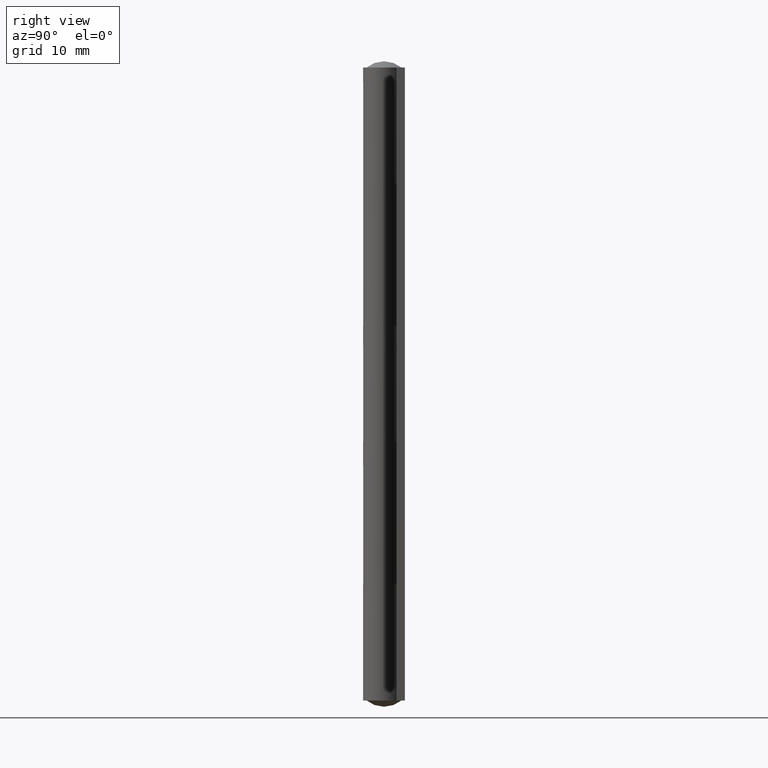
[diagram: clean part render]
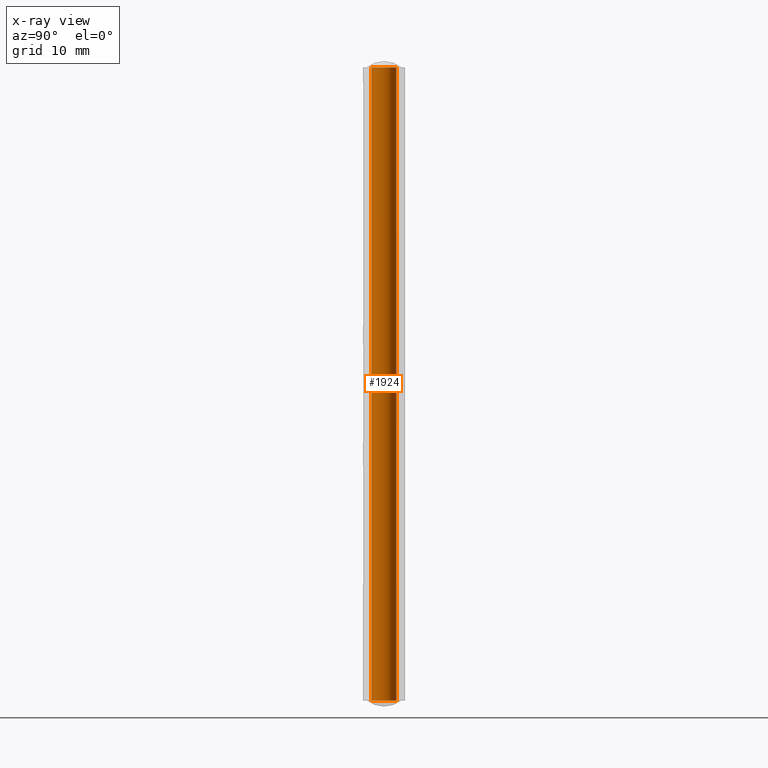
[diagram: x-ray — body ghosted, one internal face saturated and labeled with its STEP entity id]
A machine part, right view, then the same camera in x-ray: the body is ghosted and one INTERNAL B-rep face — a face not visible from any outside direction — is saturated and labeled: STEP entity #1924.
In plain terms, the highlighted face is a freeform B-spline surface patch.
Its self-contained STEP definition (entity closure, byte-faithful):
#1791=CARTESIAN_POINT('',(1.500004000000060,0.0,0.0));
#1792=VERTEX_POINT('',#1791);
#1793=CARTESIAN_POINT('',(0.091573053752788,-1.497206190156383,-9.584447E-015));
#1794=VERTEX_POINT('',#1793);
#1795=CARTESIAN_POINT('',(1.500004000000060,0.0,0.0));
#1796=CARTESIAN_POINT('',(1.500004000000060,-1.411062862940824,-6.974732E-015));
#1797=CARTESIAN_POINT('',(0.091573053752787,-1.497206190156376,-7.400529E-015));
#1805=(BOUNDED_CURVE()B_SPLINE_CURVE(2,(#1795,#1796,#1797),.UNSPECIFIED.,.F.,.U.)B_SPLINE_CURVE_WITH_KNOTS((3,3),(0.500000000000000,0.739332962212426),.UNSPECIFIED.)CURVE()GEOMETRIC_REPRESENTATION_ITEM()RATIONAL_B_SPLINE_CURVE((1.0,0.719603993317776,0.976072041609887))REPRESENTATION_ITEM(''));
#1806=EDGE_CURVE('',#1792,#1794,#1805,.T.);
#1825=CARTESIAN_POINT('',(-0.091573053752788,1.497206190156383,-9.591361E-015));
#1826=VERTEX_POINT('',#1825);
#1840=CARTESIAN_POINT('',(-0.091573053752788,1.497206190156383,-9.591361E-015));
#1841=CARTESIAN_POINT('',(-0.045829267287468,1.500004000000060,-7.414359E-015));
#1842=CARTESIAN_POINT('',(0.0,1.500004000000060,-7.414359E-015));
#1843=CARTESIAN_POINT('',(1.500004000000059,1.500004000000059,-7.414359E-015));
#1844=CARTESIAN_POINT('',(1.500004000000060,0.0,-7.414359E-015));
#1852=(BOUNDED_CURVE()B_SPLINE_CURVE(2,(#1840,#1841,#1842,#1843,#1844),.UNSPECIFIED.,.F.,.U.)B_SPLINE_CURVE_WITH_KNOTS((3,2,3),(0.239332962212426,0.250000000000000,0.500000000000000),.UNSPECIFIED.)CURVE()GEOMETRIC_REPRESENTATION_ITEM()RATIONAL_B_SPLINE_CURVE((0.976072041609887,0.987502787868771,1.0,0.707106781186547,1.0))REPRESENTATION_ITEM(''));
#1853=EDGE_CURVE('',#1826,#1792,#1852,.T.);
#1858=CARTESIAN_POINT('',(-0.091573053496448,1.497206190172069,77.900000000000020));
#1859=CARTESIAN_POINT('',(1.405633136675620,1.588779243668518,77.900000000000020));
#1860=CARTESIAN_POINT('',(1.497206190172069,0.091573053496448,77.900000000000020));
#1861=CARTESIAN_POINT('',(1.588779243668518,-1.405633136675620,77.900000000000020));
#1862=CARTESIAN_POINT('',(0.091573053496448,-1.497206190172069,77.900000000000020));
#1863=CARTESIAN_POINT('',(-0.091573053496448,1.497206190172069,-1.947500000000005));
#1864=CARTESIAN_POINT('',(1.405633136675620,1.588779243668518,-1.947500000000005));
#1865=CARTESIAN_POINT('',(1.497206190172069,0.091573053496448,-1.947500000000005));
#1866=CARTESIAN_POINT('',(1.588779243668518,-1.405633136675620,-1.947500000000005));
#1867=CARTESIAN_POINT('',(0.091573053496448,-1.497206190172069,-1.947500000000005));
#1875=(BOUNDED_SURFACE()B_SPLINE_SURFACE(2,1,((#1858,#1863),(#1859,#1864),(#1860,#1865),(#1861,#1866),(#1862,#1867)),.UNSPECIFIED.,.F.,.F.,.U.)B_SPLINE_SURFACE_WITH_KNOTS((3,2,3),(2,2),(3.141592653589793,4.712388980384690,6.283185307179586),(0.0,79.847500000000039),.UNSPECIFIED.)GEOMETRIC_REPRESENTATION_ITEM()RATIONAL_B_SPLINE_SURFACE(((1.0,1.0),(0.707106781186548,0.707106781186548),(1.0,1.0),(0.707106781186548,0.707106781186548),(1.0,1.0)))REPRESENTATION_ITEM('')SURFACE());
#1876=ORIENTED_EDGE('',*,*,#1853,.F.);
#1877=CARTESIAN_POINT('',(-0.091573053752789,1.497206190156398,76.0));
#1878=VERTEX_POINT('',#1877);
#1879=CARTESIAN_POINT('',(-0.091573053752789,1.497206190156398,76.0));
#1880=CARTESIAN_POINT('',(-0.091573053752788,1.497206190156383,-9.591361E-015));
#1881=QUASI_UNIFORM_CURVE('',1,(#1879,#1880),.UNSPECIFIED.,.F.,.U.);
#1882=EDGE_CURVE('',#1878,#1826,#1881,.T.);
#1883=ORIENTED_EDGE('',*,*,#1882,.F.);
#1884=CARTESIAN_POINT('',(1.500004000000090,0.0,76.0));
#1885=VERTEX_POINT('',#1884);
#1886=CARTESIAN_POINT('',(-0.091573053752790,1.497206190156406,76.000000000000014));
#1887=CARTESIAN_POINT('',(-0.045829267287469,1.500004000000090,76.0));
#1888=CARTESIAN_POINT('',(0.0,1.500004000000090,76.0));
#1889=CARTESIAN_POINT('',(1.500004000000091,1.500004000000091,76.0));
#1890=CARTESIAN_POINT('',(1.500004000000090,0.0,76.0));
#1898=(BOUNDED_CURVE()B_SPLINE_CURVE(2,(#1886,#1887,#1888,#1889,#1890),.UNSPECIFIED.,.F.,.U.)B_SPLINE_CURVE_WITH_KNOTS((3,2,3),(0.239332962212426,0.250000000000000,0.500000000000000),.UNSPECIFIED.)CURVE()GEOMETRIC_REPRESENTATION_ITEM()RATIONAL_B_SPLINE_CURVE((0.976072041609887,0.987502787868771,1.0,0.707106781186548,1.0))REPRESENTATION_ITEM(''));
#1899=EDGE_CURVE('',#1878,#1885,#1898,.T.);
#1900=ORIENTED_EDGE('',*,*,#1899,.T.);
#1901=CARTESIAN_POINT('',(0.091573053752789,-1.497206190156398,76.0));
#1902=VERTEX_POINT('',#1901);
#1903=CARTESIAN_POINT('',(1.500004000000090,0.0,76.0));
#1904=CARTESIAN_POINT('',(1.500004000000090,-1.411062862940851,76.0));
#1905=CARTESIAN_POINT('',(0.091573053752790,-1.497206190156406,75.999999999999986));
#1913=(BOUNDED_CURVE()B_SPLINE_CURVE(2,(#1903,#1904,#1905),.UNSPECIFIED.,.F.,.U.)B_SPLINE_CURVE_WITH_KNOTS((3,3),(0.500000000000000,0.739332962212426),.UNSPECIFIED.)CURVE()GEOMETRIC_REPRESENTATION_ITEM()RATIONAL_B_SPLINE_CURVE((1.0,0.719603993317777,0.976072041609887))REPRESENTATION_ITEM(''));
#1914=EDGE_CURVE('',#1885,#1902,#1913,.T.);
#1915=ORIENTED_EDGE('',*,*,#1914,.T.);
#1916=CARTESIAN_POINT('',(0.091573053752789,-1.497206190156398,76.0));
#1917=CARTESIAN_POINT('',(0.091573053752788,-1.497206190156383,-9.584447E-015));
#1918=QUASI_UNIFORM_CURVE('',1,(#1916,#1917),.UNSPECIFIED.,.F.,.U.);
#1919=EDGE_CURVE('',#1902,#1794,#1918,.T.);
#1920=ORIENTED_EDGE('',*,*,#1919,.T.);
#1921=ORIENTED_EDGE('',*,*,#1806,.F.);
#1922=EDGE_LOOP('',(#1876,#1883,#1900,#1915,#1920,#1921));
#1923=FACE_OUTER_BOUND('',#1922,.T.);
#1924=ADVANCED_FACE('',(#1923),#1875,.T.);